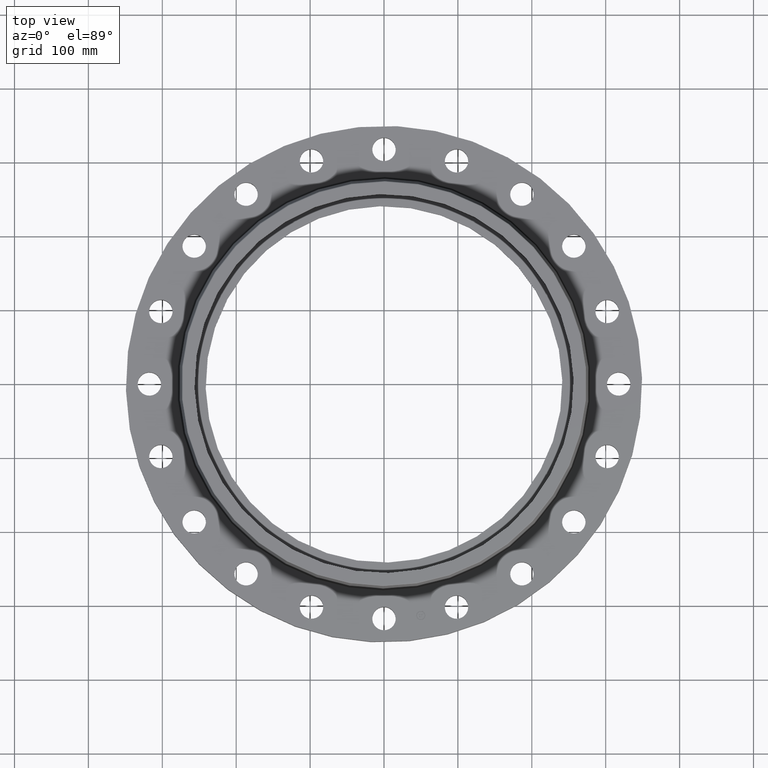
[diagram: clean part render]
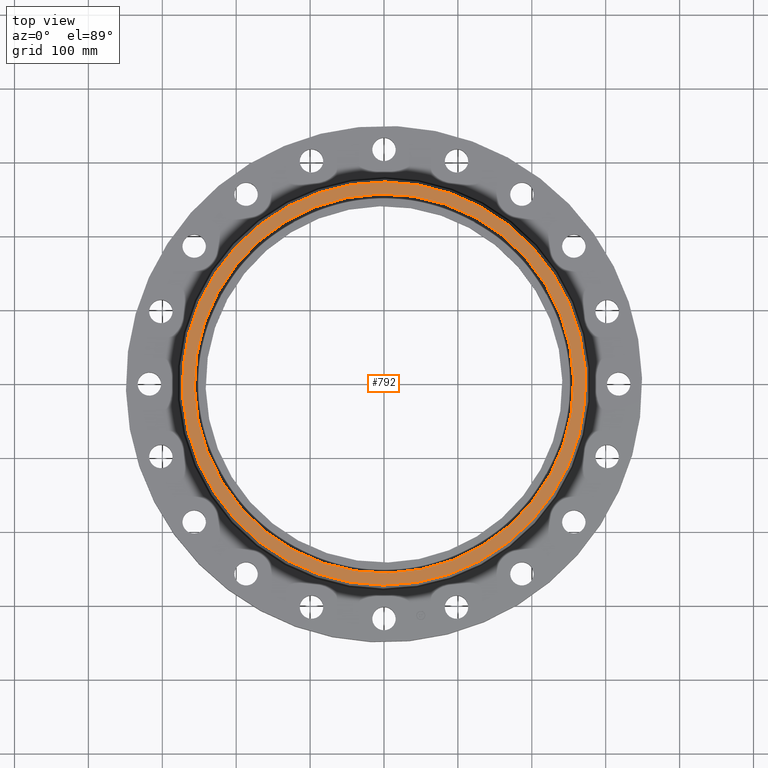
[diagram: same view with one face highlighted and labeled with its STEP entity id]
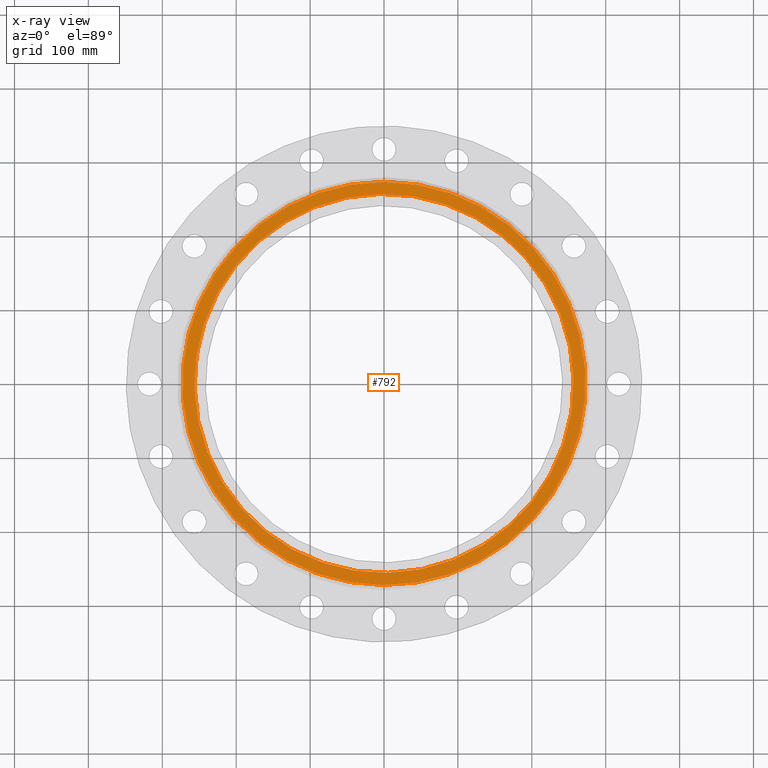
[diagram: x-ray of the same camera — body ghosted, the highlighted face saturated]
A machine part, top view. The second image highlights one B-rep face of the part: STEP entity #792.
The next image is the same camera in x-ray: the body ghosted, the highlighted face saturated — about 0% of this face is hidden behind the body in this view.
In plain terms, the highlighted planar face has unit normal (0, 0, -1).
Its self-contained STEP definition (entity closure, byte-faithful):
#736=AXIS2_PLACEMENT_3D('Circle Axis2P3D',#734,#735,$) ;
#755=AXIS2_PLACEMENT_3D('Circle Axis2P3D',#753,#754,$) ;
#768=AXIS2_PLACEMENT_3D('Plane Axis2P3D',#765,#766,#767) ;
#776=AXIS2_PLACEMENT_3D('Circle Axis2P3D',#774,#775,$) ;
#785=AXIS2_PLACEMENT_3D('Circle Axis2P3D',#783,#784,$) ;
#731=CARTESIAN_POINT('Vertex',(5.14894634445,9.42508306327,2.81000000001)) ;
#734=CARTESIAN_POINT('Axis2P3D Location',(0.,0.,2.81000000001)) ;
#738=CARTESIAN_POINT('Vertex',(-5.14894634445,-9.42508306327,2.81000000001)) ;
#753=CARTESIAN_POINT('Axis2P3D Location',(0.,0.,2.81000000001)) ;
#765=CARTESIAN_POINT('Axis2P3D Location',(0.,10.7398249151,2.81000000001)) ;
#774=CARTESIAN_POINT('Axis2P3D Location',(-5.59482469102E-016,2.23792987641E-015,2.81000000001)) ;
#778=CARTESIAN_POINT('Vertex',(-8.86358387513,4.84219793992,2.81000000001)) ;
#780=CARTESIAN_POINT('Vertex',(8.86358387513,-4.84219793992,2.81000000001)) ;
#783=CARTESIAN_POINT('Axis2P3D Location',(-2.79741234551E-016,0.,2.81000000001)) ;
#735=DIRECTION('Axis2P3D Direction',(0.,0.,-0.0393700787402)) ;
#754=DIRECTION('Axis2P3D Direction',(0.,0.,-0.0393700787402)) ;
#766=DIRECTION('Axis2P3D Direction',(0.,0.,-0.0393700787402)) ;
#767=DIRECTION('Axis2P3D XDirection',(0.0393700787402,0.,0.)) ;
#775=DIRECTION('Axis2P3D Direction',(0.,0.,-0.0393700787402)) ;
#784=DIRECTION('Axis2P3D Direction',(0.,0.,-0.0393700787402)) ;
#771=ORIENTED_EDGE('',*,*,#740,.F.) ;
#772=ORIENTED_EDGE('',*,*,#757,.F.) ;
#789=ORIENTED_EDGE('',*,*,#782,.T.) ;
#790=ORIENTED_EDGE('',*,*,#787,.T.) ;
#791=FACE_BOUND('',#788,.T.) ;
#792=ADVANCED_FACE('PartBody',(#773,#791),#769,.F.) ;
#737=CIRCLE('generated circle',#736,10.7398249151) ;
#756=CIRCLE('generated circle',#755,10.7398249151) ;
#777=CIRCLE('generated circle',#776,10.1) ;
#786=CIRCLE('generated circle',#785,10.1) ;
#740=EDGE_CURVE('',#732,#739,#737,.T.) ;
#757=EDGE_CURVE('',#739,#732,#756,.T.) ;
#782=EDGE_CURVE('',#779,#781,#777,.T.) ;
#787=EDGE_CURVE('',#781,#779,#786,.T.) ;
#770=EDGE_LOOP('',(#771,#772)) ;
#788=EDGE_LOOP('',(#789,#790)) ;
#773=FACE_OUTER_BOUND('',#770,.T.) ;
#769=PLANE('',#768) ;
#732=VERTEX_POINT('',#731) ;
#739=VERTEX_POINT('',#738) ;
#779=VERTEX_POINT('',#778) ;
#781=VERTEX_POINT('',#780) ;